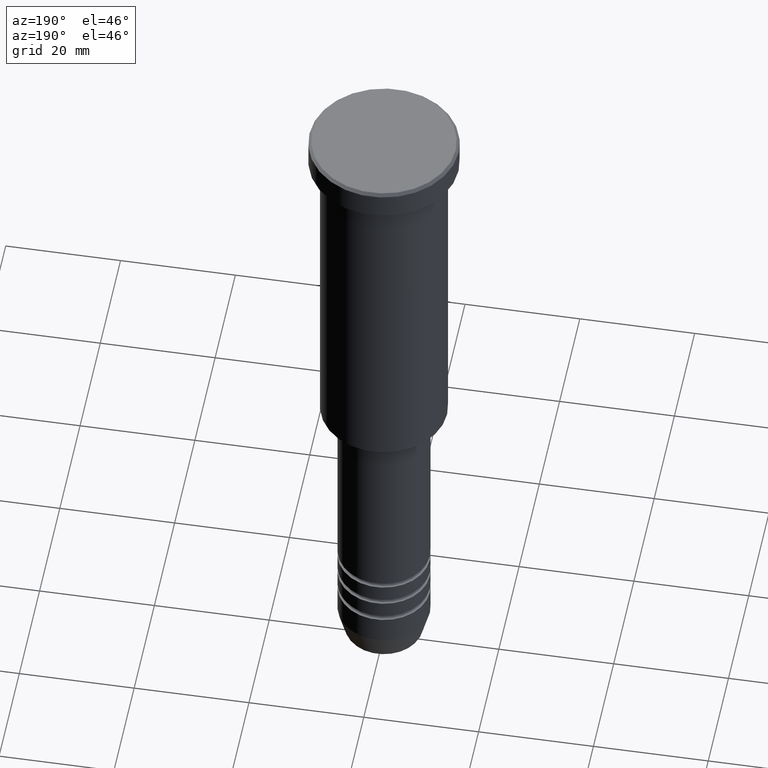
[diagram: clean part render]
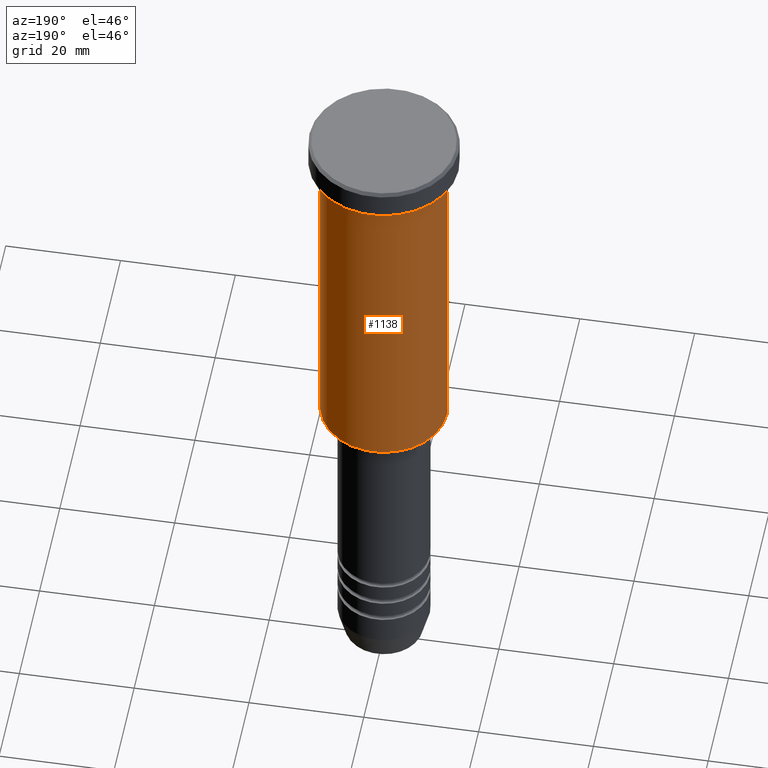
[diagram: same view with one face highlighted and labeled with its STEP entity id]
A machine part, auxiliary view. The second image highlights one B-rep face of the part: STEP entity #1138.
In plain terms, the highlighted cylindrical surface (partial cylindrical patch) has radius 11 mm, axis along (-0, -0, 1).
Its self-contained STEP definition (entity closure, byte-faithful):
#67 = VERTEX_POINT ( 'NONE', #74 ) ;
#74 = CARTESIAN_POINT ( 'NONE',  ( -11.00000000000000000, 1.347111479062088405E-15, -5.999999999999999112 ) ) ;
#81 = CARTESIAN_POINT ( 'NONE',  ( 11.00000000000000000, 0.000000000000000000, 0.000000000000000000 ) ) ;
#88 = EDGE_LOOP ( 'NONE', ( #222, #602, #663, #1056 ) ) ;
#119 = DIRECTION ( 'NONE',  ( -0.000000000000000000, -0.000000000000000000, 1.000000000000000000 ) ) ;
#140 = VECTOR ( 'NONE', #957, 1000.000000000000000 ) ;
#174 = DIRECTION ( 'NONE',  ( -0.000000000000000000, -0.000000000000000000, 1.000000000000000000 ) ) ;
#198 = CIRCLE ( 'NONE', #286, 11.00000000000000000 ) ;
#222 = ORIENTED_EDGE ( 'NONE', *, *, #999, .T. ) ;
#286 = AXIS2_PLACEMENT_3D ( 'NONE', #334, #703, #356 ) ;
#298 = EDGE_CURVE ( 'NONE', #1010, #67, #739, .T. ) ;
#334 = CARTESIAN_POINT ( 'NONE',  ( 0.000000000000000000, 0.000000000000000000, -65.50000000000001421 ) ) ;
#349 = VECTOR ( 'NONE', #174, 1000.000000000000000 ) ;
#356 = DIRECTION ( 'NONE',  ( -1.000000000000000000, 0.000000000000000000, 0.000000000000000000 ) ) ;
#366 = DIRECTION ( 'NONE',  ( 1.000000000000000000, 0.000000000000000000, 0.000000000000000000 ) ) ;
#383 = AXIS2_PLACEMENT_3D ( 'NONE', #1175, #537, #366 ) ;
#395 = EDGE_CURVE ( 'NONE', #744, #67, #516, .T. ) ;
#449 = VERTEX_POINT ( 'NONE', #753 ) ;
#508 = LINE ( 'NONE', #81, #349 ) ;
#516 = LINE ( 'NONE', #586, #140 ) ;
#536 = DIRECTION ( 'NONE',  ( 1.000000000000000000, 0.000000000000000000, 0.000000000000000000 ) ) ;
#537 = DIRECTION ( 'NONE',  ( -0.000000000000000000, -0.000000000000000000, 1.000000000000000000 ) ) ;
#551 = AXIS2_PLACEMENT_3D ( 'NONE', #933, #119, #536 ) ;
#586 = CARTESIAN_POINT ( 'NONE',  ( -11.00000000000000000, 1.347111479062088405E-15, 0.000000000000000000 ) ) ;
#602 = ORIENTED_EDGE ( 'NONE', *, *, #395, .T. ) ;
#663 = ORIENTED_EDGE ( 'NONE', *, *, #298, .F. ) ;
#703 = DIRECTION ( 'NONE',  ( -0.000000000000000000, -0.000000000000000000, 1.000000000000000000 ) ) ;
#739 = CIRCLE ( 'NONE', #383, 11.00000000000000000 ) ;
#744 = VERTEX_POINT ( 'NONE', #752 ) ;
#746 = FACE_OUTER_BOUND ( 'NONE', #88, .T. ) ;
#752 = CARTESIAN_POINT ( 'NONE',  ( -11.00000000000000000, 1.347111479062088405E-15, -65.50000000000001421 ) ) ;
#753 = CARTESIAN_POINT ( 'NONE',  ( 11.00000000000000000, 0.000000000000000000, -65.50000000000001421 ) ) ;
#895 = EDGE_CURVE ( 'NONE', #449, #1010, #508, .T. ) ;
#913 = CYLINDRICAL_SURFACE ( 'NONE', #551, 11.00000000000000000 ) ;
#933 = CARTESIAN_POINT ( 'NONE',  ( 0.000000000000000000, 0.000000000000000000, 0.000000000000000000 ) ) ;
#957 = DIRECTION ( 'NONE',  ( -0.000000000000000000, -0.000000000000000000, 1.000000000000000000 ) ) ;
#992 = CARTESIAN_POINT ( 'NONE',  ( 11.00000000000000000, 0.000000000000000000, -5.999999999999999112 ) ) ;
#999 = EDGE_CURVE ( 'NONE', #449, #744, #198, .T. ) ;
#1010 = VERTEX_POINT ( 'NONE', #992 ) ;
#1056 = ORIENTED_EDGE ( 'NONE', *, *, #895, .F. ) ;
#1138 = ADVANCED_FACE ( 'NONE', ( #746 ), #913, .T. ) ;
#1175 = CARTESIAN_POINT ( 'NONE',  ( 0.000000000000000000, 0.000000000000000000, -5.999999999999999112 ) ) ;